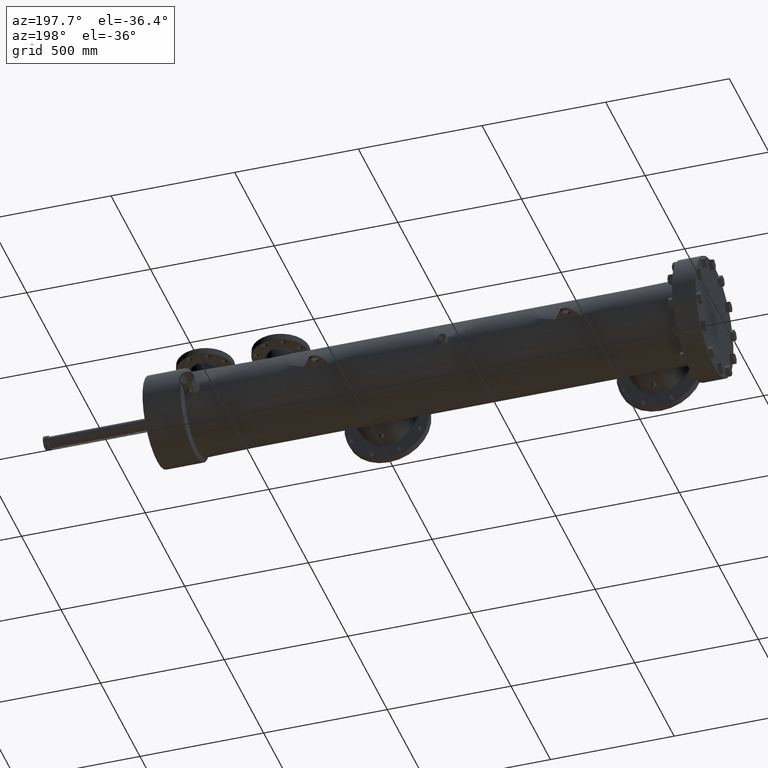
[diagram: clean part render]
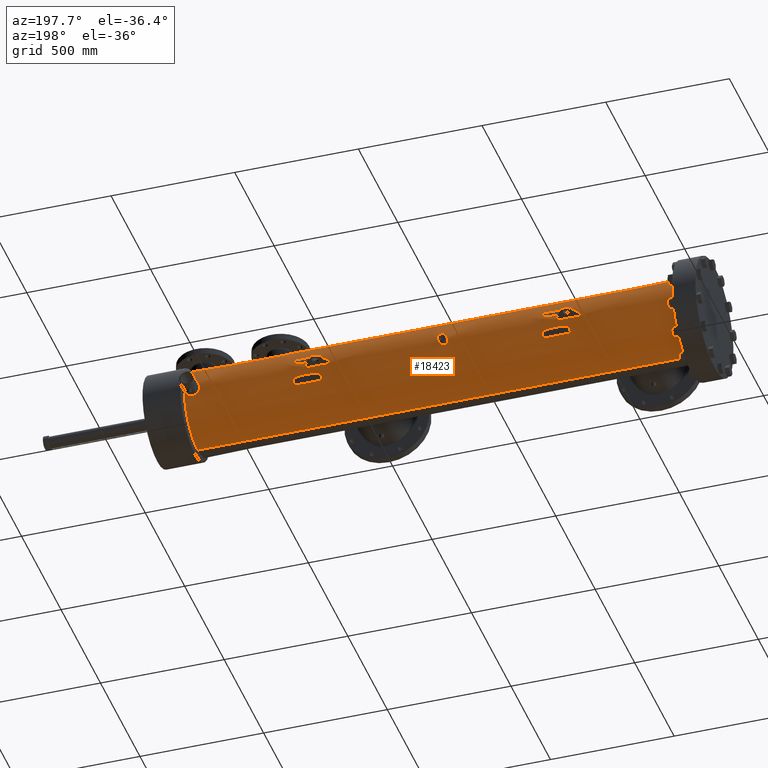
[diagram: same view with one face highlighted and labeled with its STEP entity id]
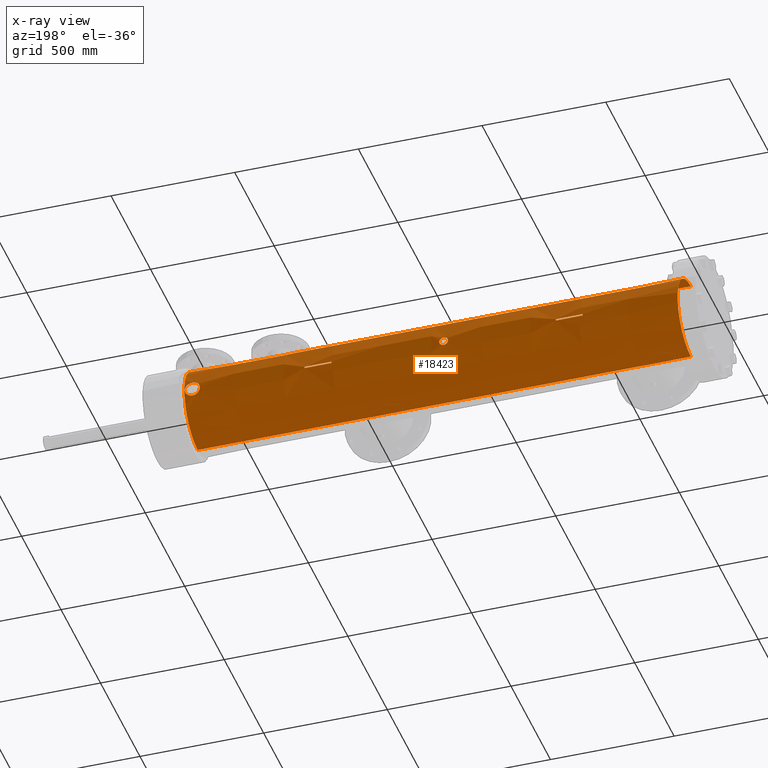
[diagram: x-ray of the same camera — body ghosted, the highlighted face saturated]
A machine part, auxiliary view. The second image highlights one B-rep face of the part: STEP entity #18423.
The next image is the same camera in x-ray: the body ghosted, the highlighted face saturated — about 0% of this face is hidden behind the body in this view.
In plain terms, the highlighted conical surface has half-angle 0.002 deg.
Its self-contained STEP definition (entity closure, byte-faithful):
#23 = CARTESIAN_POINT ( 'NONE',  ( 775.4865027959423287, 190.6797848216131968, -1.194855040561723092 ) ) ;
#70 = CARTESIAN_POINT ( 'NONE',  ( 698.3182505649875793, 184.1613553879231517, 6.624798784731736667 ) ) ;
#83 = CARTESIAN_POINT ( 'NONE',  ( 776.7462087243238784, 186.0163745150873069, 6.362209326028304801 ) ) ;
#160 = CARTESIAN_POINT ( 'NONE',  ( 773.5110123443979546, 184.9492121841751100, 6.580631059574883146 ) ) ;
#170 = CARTESIAN_POINT ( 'NONE',  ( 761.4040781029584650, 184.5591010449936960, 6.614775591442791480 ) ) ;
#183 = CARTESIAN_POINT ( 'NONE',  ( 775.2536468948613901, 190.6863949747560127, 1.158272968613077492 ) ) ;
#248 = CARTESIAN_POINT ( 'NONE',  ( 773.5928300568094755, 185.1326158357519773, 6.555572472370677417 ) ) ;
#261 = ORIENTED_EDGE ( 'NONE', *, *, #4505, .T. ) ;
#275 = CARTESIAN_POINT ( 'NONE',  ( 775.5451056026677179, 190.6794354120409594, 1.196762599343148770 ) ) ;
#277 = CARTESIAN_POINT ( 'NONE',  ( 761.3684595735534231, 184.1630862149474126, 6.626625203461078861 ) ) ;
#332 = CARTESIAN_POINT ( 'NONE',  ( 698.3182505649875793, 184.1613553879231517, -6.624798784731736667 ) ) ;
#335 = CARTESIAN_POINT ( 'NONE',  ( 776.3921775209378211, 186.2010446551427094, 6.305460125881176658 ) ) ;
#420 = EDGE_CURVE ( 'NONE', #10286, #1720, #4068, .T. ) ;
#426 = CARTESIAN_POINT ( 'NONE',  ( 774.5703172293129910, 186.1223795504193959, 6.330226305317139257 ) ) ;
#433 = VERTEX_POINT ( 'NONE', #2249 ) ;
#437 = CARTESIAN_POINT ( 'NONE',  ( 765.1691886543123928, 185.6663588703744097, 6.453779367499503650 ) ) ;
#456 = CARTESIAN_POINT ( 'NONE',  ( 755.1471378975076050, 190.7866214766707174, 0.1250000000000000000 ) ) ;
#522 = CARTESIAN_POINT ( 'NONE',  ( 762.1168656323519599, 185.8155387324757726, 6.416911299848815808 ) ) ;
#535 = CARTESIAN_POINT ( 'NONE',  ( 774.3836723163419720, 190.7855325975781966, -0.1944668874746527110 ) ) ;
#536 = B_SPLINE_CURVE_WITH_KNOTS ( 'NONE', 3,
 ( #2637, #6593, #3140, #22971, #24757, #11127, #19101, #7265, #16945, #16773, #5097, #14776, #21073, #18842, #16862, #19009, #12967, #1179, #5270, #1255, #24929, #20916, #7115, #24596, #6939, #9061, #8979, #2975, #1084, #13046, #9230, #12801, #14945, #999, #3059, #18755, #18924, #5015, #22891, #4929, #12890, #15121, #20736, #24842, #3225, #15040, #20989, #8893, #17024, #5190, #9147, #13128, #1338, #22726, #14858, #3307, #17104, #10868, #24675, #7030, #20825, #22805 ),
 .UNSPECIFIED., .F., .F.,
 ( 4, 2, 2, 2, 2, 2, 2, 2, 2, 2, 2, 2, 2, 2, 2, 2, 2, 2, 2, 2, 2, 2, 2, 2, 2, 2, 2, 2, 2, 2, 4 ),
 ( 0.07123914898288594144, 0.07723234638397472041, 0.07873064573425218871, 0.08022894508452965701, 0.08322554378509462725, 0.08921874118622474814, 0.09221533988678554117, 0.09521193858734632032, 0.09820853728790709947, 0.1012051359884678925, 0.1071983333895894785, 0.1086966327398698196, 0.1101949320901501744, 0.1131915307907079282, 0.1191847281918234358, 0.1206830275421023196, 0.1221813268923811896, 0.1251779255929389434, 0.1281745242934966833, 0.1296728236437755810, 0.1311711229940544510, 0.1371643203951577461, 0.1401609190957095186, 0.1416592184459853909, 0.1431575177962612910, 0.1491507151973643086, 0.1521473138979202444, 0.1551439125984761525, 0.1581405112990321160, 0.1611371099995880241, 0.1671303074006895151 ),
 .UNSPECIFIED. ) ;
#558 = CARTESIAN_POINT ( 'NONE',  ( 734.8676019396397123, 190.7866187048074380, 0.09165498900020865869 ) ) ;
#614 = CARTESIAN_POINT ( 'NONE',  ( 763.8541945416548060, 186.3459982223155293, 6.256305035984192742 ) ) ;
#651 = CARTESIAN_POINT ( 'NONE',  ( 734.9552548395359963, 190.7780428358747429, 0.3491082697561253001 ) ) ;
#673 = CARTESIAN_POINT ( 'NONE',  ( 773.3681257417587176, 184.1627470090584495, 6.626972954749449585 ) ) ;
#701 = CARTESIAN_POINT ( 'NONE',  ( 761.4819607616517487, 184.8750444982794647, 6.589437913850310302 ) ) ;
#781 = CARTESIAN_POINT ( 'NONE',  ( 761.6467576115259135, 185.2342333470891163, 6.539284663996751235 ) ) ;
#903 = CARTESIAN_POINT ( 'NONE',  ( 735.0345406358643459, 190.7712778956214095, 0.4596615362385269021 ) ) ;
#908 = CARTESIAN_POINT ( 'NONE',  ( 757.6849278439913178, 190.7882671655726483, -0.04167160966238111358 ) ) ;
#978 = CARTESIAN_POINT ( 'NONE',  ( 736.1849342735349637, 190.7801662663273419, 0.3092352577929780022 ) ) ;
#989 = CARTESIAN_POINT ( 'NONE',  ( 735.2098889121137972, 190.7596765996592012, -0.6036516920924152041 ) ) ;
#993 = CARTESIAN_POINT ( 'NONE',  ( 757.6859645855671488, 190.7866950424357526, -0.1250000000000000000 ) ) ;
#999 = CARTESIAN_POINT ( 'NONE',  ( 776.7517826696789598, 190.7866842311784410, -0.1568862969684876041 ) ) ;
#1013 = CARTESIAN_POINT ( 'NONE',  ( 713.4312074525861362, 190.7869851614422601, -0.04167161195405471447 ) ) ;
#1059 = CARTESIAN_POINT ( 'NONE',  ( 736.2322829383538192, 190.7848343214511999, 0.1803315086380940235 ) ) ;
#1084 = CARTESIAN_POINT ( 'NONE',  ( 776.7614426441336946, 190.7884232212573750, 0.07924565169164062006 ) ) ;
#1093 = CARTESIAN_POINT ( 'NONE',  ( 776.8291199031046972, 184.1613553879231517, -6.627073333241657593 ) ) ;
#1166 = CARTESIAN_POINT ( 'NONE',  ( 735.3343794740911790, 190.7541654349640794, -0.6613119121588948435 ) ) ;
#1171 = CARTESIAN_POINT ( 'NONE',  ( 713.4301704706816736, 190.7854126739024991, -0.1250000000000000000 ) ) ;
#1179 = CARTESIAN_POINT ( 'NONE',  ( 776.5141325872941707, 190.7482026002075486, 0.7296252591044121161 ) ) ;
#1236 = CARTESIAN_POINT ( 'NONE',  ( 735.9071763474032650, 190.7596706361762529, -0.6039378737942009412 ) ) ;
#1255 = CARTESIAN_POINT ( 'NONE',  ( 776.6031304828832162, 190.7615263668976695, 0.6000403053351327509 ) ) ;
#1313 = CARTESIAN_POINT ( 'NONE',  ( 736.2556356034612008, 190.7872536009790281, 0.02290084867295926613 ) ) ;
#1338 = CARTESIAN_POINT ( 'NONE',  ( 776.1636442249742913, 190.7068234127534652, -1.036843949795052788 ) ) ;
#1387 = B_SPLINE_CURVE_WITH_KNOTS ( 'NONE', 3,
 ( #20971, #14923, #22867, #11022, #13025, #22623, #4908, #13110, #18732, #1236, #15015, #20714, #4990, #3200, #17003, #8872, #18823, #7006, #24573, #5166, #18988, #9123, #11100, #12867, #24910, #1313, #5252, #12777, #15095, #10844, #1059, #21050, #10761, #978, #22787, #10937, #24736, #3372, #13281, #1400, #3536, #7569, #15426, #21132, #5494, #17254, #21216, #3613, #21391, #13364, #7489, #21300 ),
 .UNSPECIFIED., .F., .F.,
 ( 4, 2, 2, 2, 2, 2, 2, 2, 2, 2, 2, 2, 2, 2, 2, 2, 2, 2, 2, 2, 2, 2, 2, 2, 2, 4 ),
 ( 0.01366950837305698149, 0.01713139073549430416, 0.01886233191671296550, 0.02059327309793163030, 0.02232421427915029163, 0.02405515546036895297, 0.02751703782279765059, 0.02924797900401582273, 0.03097892018523400182, 0.03444080254767624416, 0.03617174372889533918, 0.03790268491011443419, 0.04136456727255261728, 0.04309550845377171924, 0.04482644963499080037, 0.04655739081620989539, 0.04828833199742899041, 0.05175021435986716656, 0.05348115554108626157, 0.05521209672230535659, 0.05867397908473589996, 0.06040492026594684871, 0.06213586144715779747, 0.06386680262836874622, 0.06559774380957969497, 0.06905962617200159248 ),
 .UNSPECIFIED. ) ;
#1400 = CARTESIAN_POINT ( 'NONE',  ( 736.0191809312808573, 190.7664874774443149, 0.5250719242645773832 ) ) ;
#1423 = CARTESIAN_POINT ( 'NONE',  ( 713.4301704706816736, 190.7854126739024991, 0.1250000000000000000 ) ) ;
#1435 = AXIS2_PLACEMENT_3D ( 'NONE', #21196, #5232, #5308 ) ;
#1502 = B_SPLINE_CURVE_WITH_KNOTS ( 'NONE', 3,
 ( #1423, #15197, #19260, #7433, #7682, #5786, #17778 ),
 .UNSPECIFIED., .F., .F.,
 ( 4, 3, 4 ),
 ( 0.1946596024845252126, 0.2059506957627644519, 0.3026902803308108569 ),
 .UNSPECIFIED. ) ;
#1691 = CARTESIAN_POINT ( 'NONE',  ( 765.7621597064253365, 184.1617015796352348, 6.626752710912077404 ) ) ;
#1692 = ORIENTED_EDGE ( 'NONE', *, *, #8489, .F. ) ;
#1720 = VERTEX_POINT ( 'NONE', #17904 ) ;
#1751 = CARTESIAN_POINT ( 'NONE',  ( 775.5646964343260379, 190.6794359890937471, -1.196762599360133184 ) ) ;
#1984 = CARTESIAN_POINT ( 'NONE',  ( 761.3684595735533094, 184.1634323763099133, 6.626625094963443985 ) ) ;
#2068 = VERTEX_POINT ( 'NONE', #21517 ) ;
#2140 = CARTESIAN_POINT ( 'NONE',  ( 774.6608280262184962, 186.1657645182615113, 6.316622759468828008 ) ) ;
#2161 = CARTESIAN_POINT ( 'NONE',  ( 774.9651512491732319, 190.7068437877194924, 1.036492350784190997 ) ) ;
#2163 = FACE_BOUND ( 'NONE', #13014, .T. ) ;
#2227 = CARTESIAN_POINT ( 'NONE',  ( 774.7757895597908373, 186.2142504126506140, 6.301051320549793999 ) ) ;
#2246 = CARTESIAN_POINT ( 'NONE',  ( 774.4905202969894162, 190.7672978713273153, -0.5290922695501697470 ) ) ;
#2249 = CARTESIAN_POINT ( 'NONE',  ( 713.4301704706816736, 190.7854126739024991, 0.1250000000000000000 ) ) ;
#2306 = CARTESIAN_POINT ( 'NONE',  ( 773.4027574828942306, 184.5649659930953703, 6.615434282910465313 ) ) ;
#2329 = CARTESIAN_POINT ( 'NONE',  ( 774.4290731499169169, 190.7775254939625711, -0.3856068150153947327 ) ) ;
#2410 = CARTESIAN_POINT ( 'NONE',  ( 763.2754838972477955, 186.3422916977582986, 6.257513208693231910 ) ) ;
#2423 = CARTESIAN_POINT ( 'NONE',  ( 774.9317550915203583, 190.7099971197300476, 1.016436278906667212 ) ) ;
#2498 = CARTESIAN_POINT ( 'NONE',  ( 765.0182587148718767, 185.8173200802749818, 6.417325454077118962 ) ) ;
#2536 = CARTESIAN_POINT ( 'NONE',  ( 734.8630596204850463, 190.7870939903383487, 0.04583539738119508933 ) ) ;
#2595 = CARTESIAN_POINT ( 'NONE',  ( 761.6646464086227297, 185.2656672938326210, 6.534045491424266494 ) ) ;
#2611 = CARTESIAN_POINT ( 'NONE',  ( 761.3684602281053913, 184.1617015560229049, 6.626625420478460704 ) ) ;
#2625 = CARTESIAN_POINT ( 'NONE',  ( 734.8852506742614423, 190.7847983809522248, -0.1802146389956637840 ) ) ;
#2637 = CARTESIAN_POINT ( 'NONE',  ( 775.5646964343260379, 190.6794359890937471, 1.196762599360133184 ) ) ;
#2681 = CARTESIAN_POINT ( 'NONE',  ( 762.0374728614744981, 185.7424028713757878, 6.435323501553768644 ) ) ;
#2712 = CARTESIAN_POINT ( 'NONE',  ( 735.0986402347037938, 190.7664412913404419, 0.5253359151996851439 ) ) ;
#2765 = CARTESIAN_POINT ( 'NONE',  ( 762.0635367536193598, 185.7672165320498721, 6.429172783259031299 ) ) ;
#2882 = CARTESIAN_POINT ( 'NONE',  ( 735.1903808962241555, 190.7607400463615477, 0.5919426077342954118 ) ) ;
#2919 = EDGE_CURVE ( 'NONE', #13300, #14152, #22890, .T. ) ;
#2963 = CARTESIAN_POINT ( 'NONE',  ( 735.5360309302751602, 190.7504862782888324, -0.6968503937008418969 ) ) ;
#2975 = CARTESIAN_POINT ( 'NONE',  ( 776.7536870928191775, 190.7870098064324793, 0.1570535458391881523 ) ) ;
#3059 = CARTESIAN_POINT ( 'NONE',  ( 776.7460243972457192, 190.7856515990784487, -0.1955393603727210716 ) ) ;
#3131 = CARTESIAN_POINT ( 'NONE',  ( 735.4447605217693535, 190.7514323236628115, -0.6878352513589615080 ) ) ;
#3140 = CARTESIAN_POINT ( 'NONE',  ( 775.7208384023680310, 190.6808559719979144, 1.189129646052128564 ) ) ;
#3200 = CARTESIAN_POINT ( 'NONE',  ( 736.0674339473409873, 190.7700859863634548, -0.4768536424242098004 ) ) ;
#3225 = CARTESIAN_POINT ( 'NONE',  ( 776.5147763373608996, 190.7482951047238657, -0.7287963890386929267 ) ) ;
#3257 = CARTESIAN_POINT ( 'NONE',  ( 698.3182505649875793, 184.1613553879231517, 6.624798784731736667 ) ) ;
#3263 = CARTESIAN_POINT ( 'NONE',  ( 753.4349432352114491, 190.7881440460349722, 0.04167161022399093473 ) ) ;
#3274 = DIRECTION ( 'NONE',  ( 0.0000000000000000000, 0.0000000000000000000, 1.000000000000000000 ) ) ;
#3307 = CARTESIAN_POINT ( 'NONE',  ( 775.9870085444723600, 190.6930160867550512, -1.120453340470419112 ) ) ;
#3336 = VECTOR ( 'NONE', #20854, 39.37007874015748854 ) ;
#3372 = CARTESIAN_POINT ( 'NONE',  ( 736.0827724706274466, 190.7712880921346823, 0.4599599353444879801 ) ) ;
#3406 = FACE_BOUND ( 'NONE', #3687, .T. ) ;
#3536 = CARTESIAN_POINT ( 'NONE',  ( 735.9841083529344132, 190.7641031443581596, 0.5538883677756526458 ) ) ;
#3613 = CARTESIAN_POINT ( 'NONE',  ( 735.7394596641195221, 190.7529328427155804, 0.6734058359506439606 ) ) ;
#3627 = CARTESIAN_POINT ( 'NONE',  ( 775.1788675298397493, 190.6904358190342634, -1.135560898583652945 ) ) ;
#3628 = B_SPLINE_CURVE_WITH_KNOTS ( 'NONE', 3,
 ( #17371, #13491, #9589, #1691, #15470 ),
 .UNSPECIFIED., .F., .F.,
 ( 4, 1, 4 ),
 ( 0.2217245675846880038, 0.2217506509199212994, 0.2217767342551546228 ),
 .UNSPECIFIED. ) ;
#3687 = EDGE_LOOP ( 'NONE', ( #1692, #4336, #21192, #24331 ) ) ;
#3690 = LINE ( 'NONE', #70, #6466 ) ;
#3756 = CARTESIAN_POINT ( 'NONE',  ( 698.3182505649875793, 184.1613553879231517, 0.0000000000000000000 ) ) ;
#3992 = CARTESIAN_POINT ( 'NONE',  ( 761.3684605553864913, 184.1613553879231517, 6.626625420487942897 ) ) ;
#4028 = CARTESIAN_POINT ( 'NONE',  ( 775.0120231116563900, 186.2919189232231645, 6.275235656997427469 ) ) ;
#4038 = CARTESIAN_POINT ( 'NONE',  ( 761.3719958743952247, 184.3074675391765425, 6.625405149858776710 ) ) ;
#4047 = CARTESIAN_POINT ( 'NONE',  ( 774.3834553835127963, 190.7855675368063828, 0.1961167152784564494 ) ) ;
#4068 = B_SPLINE_CURVE_WITH_KNOTS ( 'NONE', 3,
 ( #12154, #2611, #18288, #277, #6278 ),
 .UNSPECIFIED., .F., .F.,
 ( 4, 1, 4 ),
 ( 0.04592771813581388030, 0.04595410278338605409, 0.04598048743095822788 ),
 .UNSPECIFIED. ) ;
#4117 = CARTESIAN_POINT ( 'NONE',  ( 774.3870477441982985, 190.7849312461950717, -0.2139676218078621073 ) ) ;
#4186 = CARTESIAN_POINT ( 'NONE',  ( 774.1369089271436223, 185.8357612931011715, 6.412357333805340787 ) ) ;
#4210 = CARTESIAN_POINT ( 'NONE',  ( 774.7459369008112162, 190.7305767013464504, 0.8737356118992339882 ) ) ;
#4264 = ORIENTED_EDGE ( 'NONE', *, *, #2919, .F. ) ;
#4271 = CARTESIAN_POINT ( 'NONE',  ( 776.2036370242274188, 186.2660075437251521, 6.283987774062696374 ) ) ;
#4294 = CARTESIAN_POINT ( 'NONE',  ( 774.3775948699328637, 190.7866181758984681, 0.1567905957094849201 ) ) ;
#4336 = ORIENTED_EDGE ( 'NONE', *, *, #7175, .T. ) ;
#4364 = CARTESIAN_POINT ( 'NONE',  ( 764.2762340622102784, 186.2433325036435292, 6.291196223537983911 ) ) ;
#4376 = EDGE_LOOP ( 'NONE', ( #15091, #6611, #9460, #25197 ) ) ;
#4448 = CARTESIAN_POINT ( 'NONE',  ( 764.6354518998683716, 186.0823460740365078, 6.342202059861721253 ) ) ;
#4485 = CARTESIAN_POINT ( 'NONE',  ( 734.8619152073398482, 190.7872146066897301, -0.04525556805263020871 ) ) ;
#4502 = ORIENTED_EDGE ( 'NONE', *, *, #5479, .T. ) ;
#4505 = EDGE_CURVE ( 'NONE', #14356, #14826, #3628, .T. ) ;
#4547 = CARTESIAN_POINT ( 'NONE',  ( 763.4203694678308239, 186.3558000169034869, 6.252788876925863271 ) ) ;
#4612 = FACE_OUTER_BOUND ( 'NONE', #10460, .T. ) ;
#4623 = CARTESIAN_POINT ( 'NONE',  ( 765.3077774786872851, 185.5018087398399587, 6.489817345584070196 ) ) ;
#4709 = CARTESIAN_POINT ( 'NONE',  ( 763.5296197059684573, 186.3602918453274242, 6.251213700233239301 ) ) ;
#4747 = CARTESIAN_POINT ( 'NONE',  ( 715.1442500553001764, 190.7854623415639423, -0.1250000000000000000 ) ) ;
#4828 = CARTESIAN_POINT ( 'NONE',  ( 735.1337847122732683, 190.7640590329150427, 0.5541096919824886058 ) ) ;
#4908 = CARTESIAN_POINT ( 'NONE',  ( 735.8044934150063909, 190.7550405360984485, -0.6524889344441845429 ) ) ;
#4929 = CARTESIAN_POINT ( 'NONE',  ( 776.6847412579408001, 190.7749970135577371, -0.4220615501011454884 ) ) ;
#4990 = CARTESIAN_POINT ( 'NONE',  ( 736.0192430651804898, 190.7664919795389267, -0.5250133803022301038 ) ) ;
#5010 = EDGE_CURVE ( 'NONE', #7269, #24119, #12875, .T. ) ;
#5015 = CARTESIAN_POINT ( 'NONE',  ( 776.7042055076358338, 190.7783225789581536, -0.3662663660259263820 ) ) ;
#5097 = CARTESIAN_POINT ( 'NONE',  ( 776.1639620374500055, 190.7066180478657600, 1.038916566557609444 ) ) ;
#5166 = CARTESIAN_POINT ( 'NONE',  ( 736.2111820592471076, 190.7827189361211708, -0.2459576641237624928 ) ) ;
#5179 = CARTESIAN_POINT ( 'NONE',  ( 735.2710312660701675, 190.7567249352877639, -0.6350766579821287561 ) ) ;
#5190 = CARTESIAN_POINT ( 'NONE',  ( 776.3554877714284430, 190.7270256167489606, -0.9016606833083251615 ) ) ;
#5231 = CARTESIAN_POINT ( 'NONE',  ( 753.4339064347177555, 190.7865718335877432, -0.1250000000000000000 ) ) ;
#5232 = DIRECTION ( 'NONE',  ( -1.000000000000000000, -0.0000000000000000000, -0.0000000000000000000 ) ) ;
#5245 = FACE_BOUND ( 'NONE', #22685, .T. ) ;
#5252 = CARTESIAN_POINT ( 'NONE',  ( 736.2544951782601856, 190.7871333501140896, 0.04585868410738785234 ) ) ;
#5270 = CARTESIAN_POINT ( 'NONE',  ( 776.5377597698934551, 190.7516612632593933, 0.6978039396776193337 ) ) ;
#5308 = DIRECTION ( 'NONE',  ( 0.0000000000000000000, 0.0000000000000000000, 1.000000000000000000 ) ) ;
#5479 = EDGE_CURVE ( 'NONE', #1720, #14356, #23278, .T. ) ;
#5494 = CARTESIAN_POINT ( 'NONE',  ( 735.8464005305411320, 190.7567363788443799, 0.6351309002565413975 ) ) ;
#5684 = CARTESIAN_POINT ( 'NONE',  ( 774.7744704836684377, 190.7269081937898250, -0.9022007367105382425 ) ) ;
#5725 = CARTESIAN_POINT ( 'NONE',  ( 753.4339064347177555, 190.7865718335877432, 0.1250000000000000000 ) ) ;
#5754 = CARTESIAN_POINT ( 'NONE',  ( 773.3681257417588313, 184.2134987189071467, 6.626956968290791394 ) ) ;
#5776 = B_SPLINE_CURVE_WITH_KNOTS ( 'NONE', 3,
 ( #1171, #18921, #7107, #18746, #4747, #6931, #14602 ),
 .UNSPECIFIED., .F., .F.,
 ( 4, 3, 4 ),
 ( 0.1946596024845252126, 0.2059506957627644519, 0.3026902803308108569 ),
 .UNSPECIFIED. ) ;
#5786 = CARTESIAN_POINT ( 'NONE',  ( 716.4137984086785309, 190.7854991283608399, 0.1250000000000000000 ) ) ;
#5918 = CARTESIAN_POINT ( 'NONE',  ( 775.3590389506288147, 186.3507659766667359, 6.254920119902643627 ) ) ;
#6005 = CARTESIAN_POINT ( 'NONE',  ( 773.6390119726884222, 185.2214213346645408, 6.541800609894317553 ) ) ;
#6015 = CARTESIAN_POINT ( 'NONE',  ( 761.3870944634064699, 184.4512648559123420, 6.620378937112140427 ) ) ;
#6028 = CARTESIAN_POINT ( 'NONE',  ( 774.4909823467646675, 190.7672224897161470, 0.5300398058786127686 ) ) ;
#6091 = CARTESIAN_POINT ( 'NONE',  ( 773.9930359200368457, 185.6982973430019399, 6.446328509330899514 ) ) ;
#6175 = CARTESIAN_POINT ( 'NONE',  ( 776.1070383595226758, 186.2929579513583462, 6.274894139383423664 ) ) ;
#6198 = CARTESIAN_POINT ( 'NONE',  ( 774.6649231202535475, 190.7412068827817393, -0.7893284998380702966 ) ) ;
#6253 = CARTESIAN_POINT ( 'NONE',  ( 773.9245893963961862, 185.6255550517550148, 6.463320181663146258 ) ) ;
#6269 = CARTESIAN_POINT ( 'NONE',  ( 775.1789257743785129, 190.6904269219685943, 1.135618548944876238 ) ) ;
#6278 = CARTESIAN_POINT ( 'NONE',  ( 761.3684595735533094, 184.1634323763099133, 6.626625094963443985 ) ) ;
#6361 = CARTESIAN_POINT ( 'NONE',  ( 762.6550575677031247, 186.1631544383559174, 6.317097536399525204 ) ) ;
#6447 = CARTESIAN_POINT ( 'NONE',  ( 764.9083522680484748, 185.9079008097315864, 6.392970873712861213 ) ) ;
#6465 = B_SPLINE_CURVE_WITH_KNOTS ( 'NONE', 3,
 ( #24236, #22463, #12446, #16593, #6583, #10603, #22548, #10686, #24495, #12360, #2882, #4828, #2712, #12706, #903, #14681, #18652, #24144, #651, #6843, #22206, #14420, #10335, #14329, #558, #2536, #16330, #4485, #20305, #8465, #2625, #22373, #8805, #12956, #10772, #22796, #12789, #10858, #16764, #20813, #20726, #17095, #8883, #20901, #989, #8968, #5179, #1166, #18916, #3131, #9055, #14764, #2963, #11113 ),
 .UNSPECIFIED., .F., .F.,
 ( 4, 2, 2, 2, 2, 2, 2, 2, 2, 2, 2, 2, 2, 2, 2, 2, 2, 2, 2, 2, 2, 2, 2, 2, 2, 2, 4 ),
 ( 0.06905962617200159248, 0.07078938826559476316, 0.07251915035918793384, 0.07597867454637427520, 0.07770843663996260253, 0.07943819873355092986, 0.08289772292073629978, 0.08462748501432533488, 0.08635724710791436998, 0.08808700920150340508, 0.08981677129509244017, 0.09327629548226656908, 0.09500605757585360578, 0.09673581966944064248, 0.1001953438566147020, 0.1019251059502027656, 0.1036548680437908154, 0.1053846301373788652, 0.1071143922309669427, 0.1105739164181431811, 0.1123036785117276642, 0.1140334406053121474, 0.1157632026988966167, 0.1174929647924811138, 0.1209524889796598224, 0.1226822510732491767, 0.1244120131668385032 ),
 .UNSPECIFIED. ) ;
#6466 = VECTOR ( 'NONE', #21812, 39.37007874015748854 ) ;
#6499 = AXIS2_PLACEMENT_3D ( 'NONE', #3756, #15753, #15571 ) ;
#6548 = CARTESIAN_POINT ( 'NONE',  ( 763.4932726704512334, 186.3594046547698611, 6.251524884527938752 ) ) ;
#6558 = CARTESIAN_POINT ( 'NONE',  ( 765.7621593791217265, 184.1613553879231517, 6.626752710902593435 ) ) ;
#6583 = CARTESIAN_POINT ( 'NONE',  ( 735.4448366110901816, 190.7514308549507120, 0.6878493969630192773 ) ) ;
#6593 = CARTESIAN_POINT ( 'NONE',  ( 775.6431115602836144, 190.6794382988310019, 1.196762599428119023 ) ) ;
#6611 = ORIENTED_EDGE ( 'NONE', *, *, #19935, .T. ) ;
#6632 = CARTESIAN_POINT ( 'NONE',  ( 765.3712932566705831, 185.4147737189385623, 6.507192843794885384 ) ) ;
#6724 = CARTESIAN_POINT ( 'NONE',  ( 764.1723280813356496, 186.2750649557428915, 6.280573009915768168 ) ) ;
#6776 = CARTESIAN_POINT ( 'NONE',  ( 757.6859645855671488, 190.7866950424357526, -0.1250000000000000000 ) ) ;
#6843 = CARTESIAN_POINT ( 'NONE',  ( 734.9337004193263283, 190.7800430567193075, 0.3088602203324364304 ) ) ;
#6931 = CARTESIAN_POINT ( 'NONE',  ( 716.4137984086785309, 190.7854991283608399, -0.1250000000000000000 ) ) ;
#6939 = CARTESIAN_POINT ( 'NONE',  ( 776.7040192799196348, 190.7782904651041349, 0.3668528608196602869 ) ) ;
#7006 = CARTESIAN_POINT ( 'NONE',  ( 736.1635456473684371, 190.7781514310908335, -0.3491969531915739000 ) ) ;
#7030 = CARTESIAN_POINT ( 'NONE',  ( 775.7207580599731500, 190.6808474595585494, -1.189178213433209619 ) ) ;
#7107 = CARTESIAN_POINT ( 'NONE',  ( 713.7265246248417725, 190.7854212611454727, -0.1250000000000000000 ) ) ;
#7115 = CARTESIAN_POINT ( 'NONE',  ( 776.6845035326897460, 190.7749567555308374, 0.4226897418841551457 ) ) ;
#7175 = EDGE_CURVE ( 'NONE', #433, #14502, #23722, .T. ) ;
#7224 = EDGE_CURVE ( 'NONE', #2068, #9756, #8724, .T. ) ;
#7265 = CARTESIAN_POINT ( 'NONE',  ( 775.9502256484896634, 190.6907307003876042, 1.133647347678961914 ) ) ;
#7269 = VERTEX_POINT ( 'NONE', #18596 ) ;
#7291 =( BOUNDED_CURVE ( )  B_SPLINE_CURVE ( 3, ( #9408, #11475, #17203, #15210 ),
 .UNSPECIFIED., .F., .F. ) 
 B_SPLINE_CURVE_WITH_KNOTS ( ( 4, 4 ),
 ( 3.122724994711672863, 3.160460312467913369 ),
 .UNSPECIFIED. ) 
 CURVE ( )  GEOMETRIC_REPRESENTATION_ITEM ( )  RATIONAL_B_SPLINE_CURVE ( ( 1.000000000000000000, 0.9998813406696624995, 0.9998813406696624995, 1.000000000000000000 ) ) 
 REPRESENTATION_ITEM ( '' )  );
#7351 = CARTESIAN_POINT ( 'NONE',  ( 756.4165512415373769, 190.7866582595532918, -0.1250000000000000000 ) ) ;
#7405 = FACE_BOUND ( 'NONE', #4376, .T. ) ;
#7433 = CARTESIAN_POINT ( 'NONE',  ( 713.8747017019217083, 190.7854255547669027, 0.1250000000000000000 ) ) ;
#7489 = CARTESIAN_POINT ( 'NONE',  ( 735.6042548235276399, 190.7504882658346617, 0.6968503937008417859 ) ) ;
#7503 = EDGE_CURVE ( 'NONE', #9918, #21545, #7291, .T. ) ;
#7569 = CARTESIAN_POINT ( 'NONE',  ( 735.9270395042283326, 190.7607530106512570, 0.5920392404396237485 ) ) ;
#7586 = CARTESIAN_POINT ( 'NONE',  ( 774.9318232536536470, 190.7099904143298090, -1.016479803888224120 ) ) ;
#7605 = DIRECTION ( 'NONE',  ( 0.9999999995803368069, 3.547940017089211670E-21, 2.897112881493199885E-05 ) ) ;
#7677 = CARTESIAN_POINT ( 'NONE',  ( 753.4339064347177555, 190.7865718335877432, -0.1250000000000000000 ) ) ;
#7682 = CARTESIAN_POINT ( 'NONE',  ( 715.1442500553001764, 190.7854623415639423, 0.1250000000000000000 ) ) ;
#7906 = CARTESIAN_POINT ( 'NONE',  ( 775.8097393499296004, 186.3489074591184078, 6.255587456092487564 ) ) ;
#7988 = CARTESIAN_POINT ( 'NONE',  ( 774.4592736481580459, 186.0643944836164110, 6.348069690573352020 ) ) ;
#7995 = CARTESIAN_POINT ( 'NONE',  ( 761.3977974698553908, 184.5230987371708693, 6.616842950335700024 ) ) ;
#8006 = CARTESIAN_POINT ( 'NONE',  ( 774.3679448382907822, 190.7883548519457690, 0.03947533624563367288 ) ) ;
#8089 = CARTESIAN_POINT ( 'NONE',  ( 774.5588003360255698, 190.7565577345837653, -0.6486938124324719279 ) ) ;
#8152 = CARTESIAN_POINT ( 'NONE',  ( 774.9162721588667182, 186.2646893233012122, 6.284473379959199413 ) ) ;
#8177 = CARTESIAN_POINT ( 'NONE',  ( 774.4065681780833756, 190.7814727521912914, 0.3117094847374601851 ) ) ;
#8231 = VERTEX_POINT ( 'NONE', #5725 ) ;
#8247 = CARTESIAN_POINT ( 'NONE',  ( 775.2834648879496626, 186.3423283128892649, 6.257865330601720011 ) ) ;
#8275 = CARTESIAN_POINT ( 'NONE',  ( 774.4063112953297150, 190.7815176836236901, -0.3108675191109645519 ) ) ;
#8282 = CARTESIAN_POINT ( 'NONE',  ( 753.8777245534778331, 190.7865846937880860, 0.1250000000000000000 ) ) ;
#8347 = CARTESIAN_POINT ( 'NONE',  ( 764.5408032381538987, 186.1331257693444741, 6.326670320373213308 ) ) ;
#8361 = CARTESIAN_POINT ( 'NONE',  ( 774.3755294516706726, 190.7869893285892431, -0.1360640587974920046 ) ) ;
#8430 = CARTESIAN_POINT ( 'NONE',  ( 765.7477973174179624, 184.4525881413349566, 6.621860052958619569 ) ) ;
#8465 = CARTESIAN_POINT ( 'NONE',  ( 734.8796469619620666, 190.7853721999589141, -0.1577963211378453912 ) ) ;
#8489 = EDGE_CURVE ( 'NONE', #433, #21545, #1502, .T. ) ;
#8523 = CARTESIAN_POINT ( 'NONE',  ( 764.7282039493660477, 186.0275997795014291, 6.358534371085423409 ) ) ;
#8580 = CARTESIAN_POINT ( 'NONE',  ( 713.4301704706816736, 190.7854126739024991, 0.1250000000000000000 ) ) ;
#8608 = CARTESIAN_POINT ( 'NONE',  ( 765.6202357605798170, 184.9410834439263169, 6.580805082840575082 ) ) ;
#8645 = CONICAL_SURFACE ( 'NONE', #6499, 6.624798784731736667, 2.897112881898470592E-05 ) ;
#8650 = EDGE_CURVE ( 'NONE', #8231, #19377, #22461, .T. ) ;
#8697 = CARTESIAN_POINT ( 'NONE',  ( 765.6879420266252509, 184.7342646626330236, 6.602307263773781187 ) ) ;
#8724 = B_SPLINE_CURVE_WITH_KNOTS ( 'NONE', 3,
 ( #14624, #16617, #673, #24347 ),
 .UNSPECIFIED., .F., .F.,
 ( 4, 4 ),
 ( 0.1221305037473495864, 0.1221835316852434017 ),
 .UNSPECIFIED. ) ;
#8732 = CARTESIAN_POINT ( 'NONE',  ( 757.6859645855671488, 190.7866950424357526, 0.1250000000000000000 ) ) ;
#8801 = ORIENTED_EDGE ( 'NONE', *, *, #12391, .F. ) ;
#8805 = CARTESIAN_POINT ( 'NONE',  ( 734.9061461425530979, 190.7827044307988729, -0.2453196031031753266 ) ) ;
#8872 = CARTESIAN_POINT ( 'NONE',  ( 736.1118504949813541, 190.7736576684569627, -0.4245482943002883425 ) ) ;
#8883 = CARTESIAN_POINT ( 'NONE',  ( 735.1526967741378940, 190.7629498686163458, -0.5667534925842901972 ) ) ;
#8893 = CARTESIAN_POINT ( 'NONE',  ( 776.4380316173954952, 190.7376955267600067, -0.8184837922232186536 ) ) ;
#8968 = CARTESIAN_POINT ( 'NONE',  ( 735.2501502976482470, 190.7576714364968780, -0.6251945481234744140 ) ) ;
#8979 = CARTESIAN_POINT ( 'NONE',  ( 776.7307737804113685, 190.7829484787786214, 0.2721042306407323030 ) ) ;
#9025 = CARTESIAN_POINT ( 'NONE',  ( 753.4349432352114491, 190.7881440460349722, -0.04167161022398931103 ) ) ;
#9055 = CARTESIAN_POINT ( 'NONE',  ( 735.4673954347347262, 190.7510781803006807, -0.6912153811416553717 ) ) ;
#9061 = CARTESIAN_POINT ( 'NONE',  ( 776.7212423672589239, 190.7812709652103820, 0.3101756441853781299 ) ) ;
#9123 = CARTESIAN_POINT ( 'NONE',  ( 736.2322793729847490, 190.7848339382385063, -0.1803527332966417818 ) ) ;
#9147 = CARTESIAN_POINT ( 'NONE',  ( 776.2953431971918690, 190.7199603218749075, -0.9510732228713189018 ) ) ;
#9230 = CARTESIAN_POINT ( 'NONE',  ( 776.7609798198246835, 190.7883395759105269, -0.03929335060137816027 ) ) ;
#9318 = CARTESIAN_POINT ( 'NONE',  ( 753.7297851805578830, 190.7865804070546574, -0.1250000000000000000 ) ) ;
#9408 = CARTESIAN_POINT ( 'NONE',  ( 717.6833467620569991, 190.7855359151576238, -0.1250000000000000000 ) ) ;
#9460 = ORIENTED_EDGE ( 'NONE', *, *, #12426, .T. ) ;
#9589 = CARTESIAN_POINT ( 'NONE',  ( 765.7621601973415864, 184.1623939360740394, 6.626752656669538943 ) ) ;
#9626 = CARTESIAN_POINT ( 'NONE',  ( 773.3681257417587176, 184.1634428412521913, 6.626972735566833528 ) ) ;
#9645 = CARTESIAN_POINT ( 'NONE',  ( 775.0173705699515949, 190.7023361967714266, -1.064454663388282540 ) ) ;
#9650 = ORIENTED_EDGE ( 'NONE', *, *, #18743, .T. ) ;
#9756 = VERTEX_POINT ( 'NONE', #15948 ) ;
#9876 = CARTESIAN_POINT ( 'NONE',  ( 773.4775033901502184, 184.8552299943621051, 6.591255993485741094 ) ) ;
#9896 = CARTESIAN_POINT ( 'NONE',  ( 775.0350418176299172, 190.7008805819053521, -1.073356880688408399 ) ) ;
#9918 = VERTEX_POINT ( 'NONE', #10559 ) ;
#9963 = CARTESIAN_POINT ( 'NONE',  ( 776.6604322520885262, 186.0683423434404915, 6.346823716218252365 ) ) ;
#9979 = CARTESIAN_POINT ( 'NONE',  ( 774.3779178871709519, 190.7865608017632155, -0.1555380662584268658 ) ) ;
#10033 = CARTESIAN_POINT ( 'NONE',  ( 773.7981348221383087, 185.4727360515105374, 6.496414594662812902 ) ) ;
#10057 = CARTESIAN_POINT ( 'NONE',  ( 774.5484125254675973, 190.7581237200726321, 0.6331929939668556884 ) ) ;
#10143 = CARTESIAN_POINT ( 'NONE',  ( 774.4741847232040755, 190.7699821580616799, 0.4945268790233928735 ) ) ;
#10206 = CARTESIAN_POINT ( 'NONE',  ( 773.5710858836956731, 185.0870583359071588, 6.562169849495199436 ) ) ;
#10216 = CARTESIAN_POINT ( 'NONE',  ( 762.5580115551457538, 186.1160667115852334, 6.331827353629672750 ) ) ;
#10228 = CARTESIAN_POINT ( 'NONE',  ( 774.6628001750199246, 190.7412809167117871, 0.7905537902115963300 ) ) ;
#10286 = VERTEX_POINT ( 'NONE', #3992 ) ;
#10301 = CARTESIAN_POINT ( 'NONE',  ( 762.8554018655112259, 186.2474622533040929, 6.290016809849795720 ) ) ;
#10315 = CARTESIAN_POINT ( 'NONE',  ( 774.5282315752336899, 190.7612714746113625, 0.5996201415377223620 ) ) ;
#10335 = CARTESIAN_POINT ( 'NONE',  ( 734.8843662699928245, 190.7848856825315238, 0.1812026646469264979 ) ) ;
#10391 = CARTESIAN_POINT ( 'NONE',  ( 761.7209527722720850, 185.3574906485414147, 6.517857943813011090 ) ) ;
#10460 = EDGE_LOOP ( 'NONE', ( #4264, #25100, #22927, #4502, #261, #9650, #13417, #25221, #12108, #14432 ) ) ;
#10479 = CARTESIAN_POINT ( 'NONE',  ( 761.5646474185429042, 185.0737328962297852, 6.563860609804177848 ) ) ;
#10559 = CARTESIAN_POINT ( 'NONE',  ( 717.6833467620569991, 190.7855359151576238, -0.1250000000000000000 ) ) ;
#10567 = CARTESIAN_POINT ( 'NONE',  ( 761.7017250284030752, 185.3272600921701496, 6.523337775014954154 ) ) ;
#10603 = CARTESIAN_POINT ( 'NONE',  ( 735.3777559850771013, 190.7528162635308888, 0.6744698189758669971 ) ) ;
#10686 = CARTESIAN_POINT ( 'NONE',  ( 735.2711247601642981, 190.7567210131236379, 0.6351171165695101983 ) ) ;
#10761 = CARTESIAN_POINT ( 'NONE',  ( 736.2112236667639991, 190.7827230106522620, 0.2458525690350727433 ) ) ;
#10772 = CARTESIAN_POINT ( 'NONE',  ( 734.9331713867038616, 190.7800931317720199, -0.3077825613467637944 ) ) ;
#10844 = CARTESIAN_POINT ( 'NONE',  ( 736.2378051389001712, 190.7854000983773801, 0.1582529345619638761 ) ) ;
#10858 = CARTESIAN_POINT ( 'NONE',  ( 735.0046051222731194, 190.7736854836311409, -0.4249670988400936489 ) ) ;
#10868 = CARTESIAN_POINT ( 'NONE',  ( 775.8753873511440133, 190.6867384660058917, -1.156392678943103380 ) ) ;
#10937 = CARTESIAN_POINT ( 'NONE',  ( 736.1255830885856994, 190.7748247640713259, 0.4060230329705238894 ) ) ;
#11022 = CARTESIAN_POINT ( 'NONE',  ( 735.7169403468958535, 190.7523511393648050, -0.6790514883099110222 ) ) ;
#11100 = CARTESIAN_POINT ( 'NONE',  ( 736.2378087896943271, 190.7854004718357714, -0.1582388573634136986 ) ) ;
#11113 = CARTESIAN_POINT ( 'NONE',  ( 735.5587819821047333, 190.7504869410882691, -0.6968503937008417859 ) ) ;
#11127 = CARTESIAN_POINT ( 'NONE',  ( 775.8746922102654935, 190.6867844017140783, 1.156085835917801896 ) ) ;
#11475 = CARTESIAN_POINT ( 'NONE',  ( 717.6823098390890436, 190.7871083133586581, -0.04167161139216964127 ) ) ;
#11642 = CARTESIAN_POINT ( 'NONE',  ( 775.3689646450933424, 190.6823391582878457, -1.180813142110813230 ) ) ;
#11647 = VERTEX_POINT ( 'NONE', #21926 ) ;
#11667 = ORIENTED_EDGE ( 'NONE', *, *, #19670, .T. ) ;
#11731 = CARTESIAN_POINT ( 'NONE',  ( 753.5818458076377055, 190.7865761203212571, 0.1250000000000000000 ) ) ;
#11788 = CARTESIAN_POINT ( 'NONE',  ( 773.3853993740447095, 184.4395550676591427, 6.621179200303709322 ) ) ;
#11868 = CARTESIAN_POINT ( 'NONE',  ( 775.9092471463967513, 186.3355108013784331, 6.260292561723999505 ) ) ;
#11944 = EDGE_CURVE ( 'NONE', #13300, #10286, #3690, .T. ) ;
#11979 = CARTESIAN_POINT ( 'NONE',  ( 775.5254714347511253, 190.6795231561075639, 1.196281864072394452 ) ) ;
#12037 = CARTESIAN_POINT ( 'NONE',  ( 773.6634942917137323, 185.2647976816857920, 6.534611848625055508 ) ) ;
#12060 = B_SPLINE_CURVE_WITH_KNOTS ( 'NONE', 3,
 ( #9626, #5754, #13697, #15675, #17657, #21649, #11788, #2306, #23766, #9876, #160, #10206, #248, #6005, #12037, #19812, #10033, #14203, #6253, #12212, #6091, #13948, #24015, #4186, #15944, #14027, #7988, #426, #14119, #21735, #2140, #15769, #2227, #8152, #4028, #17747, #23684, #8247, #16021, #5918, #16108, #19724, #17833, #7906, #11868, #18004, #6175, #4271, #19891, #335, #21991, #21820, #9963, #83, #13865, #15858 ),
 .UNSPECIFIED., .F., .F.,
 ( 4, 2, 2, 2, 2, 2, 2, 2, 2, 2, 2, 2, 2, 2, 2, 2, 2, 2, 2, 2, 2, 2, 2, 2, 2, 2, 2, 4 ),
 ( 0.1221835316852434017, 0.1259981869935121457, 0.1279055146476464899, 0.1298128423017808619, 0.1374421529183154633, 0.1450714635348500647, 0.1488861188431152560, 0.1527007741513804751, 0.1603300847679186014, 0.1641447400761833486, 0.1660520677303192749, 0.1679593953844552012, 0.1755887060009800604, 0.1832180166175049474, 0.1851253442716361830, 0.1870326719257674186, 0.1908473272340309446, 0.1984766378505479767, 0.2022912931588013441, 0.2041986208129332181, 0.2061059484670650921, 0.2137352590835928101, 0.2213645697001205559, 0.2251792250083843872, 0.2289938803166482462, 0.2366231909331659999, 0.2404378462414202278, 0.2442525015496744278 ),
 .UNSPECIFIED. ) ;
#12108 = ORIENTED_EDGE ( 'NONE', *, *, #15760, .T. ) ;
#12154 = CARTESIAN_POINT ( 'NONE',  ( 761.3684605553864913, 184.1613553879231517, 6.626625420487942897 ) ) ;
#12212 = CARTESIAN_POINT ( 'NONE',  ( 773.9756395616009286, 185.6802761170846452, 6.450599644850915304 ) ) ;
#12226 = CARTESIAN_POINT ( 'NONE',  ( 762.4024089741823218, 186.0286069798697213, 6.358272459939069421 ) ) ;
#12324 = CARTESIAN_POINT ( 'NONE',  ( 761.4398182194588571, 184.7375751385968954, 6.603077779276399717 ) ) ;
#12336 = CARTESIAN_POINT ( 'NONE',  ( 774.3679165746585795, 190.7883599552096427, -0.03860897096185322841 ) ) ;
#12360 = CARTESIAN_POINT ( 'NONE',  ( 735.2098976197838738, 190.7596759704729266, 0.6036590581756153817 ) ) ;
#12391 = EDGE_CURVE ( 'NONE', #24119, #7269, #536, .T. ) ;
#12410 = CARTESIAN_POINT ( 'NONE',  ( 762.4634646247968703, 186.0653276514825620, 6.347340047400967578 ) ) ;
#12426 = EDGE_CURVE ( 'NONE', #13020, #19183, #21843, .T. ) ;
#12446 = CARTESIAN_POINT ( 'NONE',  ( 735.5132903263189519, 190.7506031345779718, 0.6957419592600188052 ) ) ;
#12497 = CIRCLE ( 'NONE', #14239, 6.627073333241656705 ) ;
#12500 = CARTESIAN_POINT ( 'NONE',  ( 764.4761923859998660, 186.1638270304482603, 6.316985260397522062 ) ) ;
#12585 = CARTESIAN_POINT ( 'NONE',  ( 765.6562228990615040, 184.8383775151712882, 6.592167144904873766 ) ) ;
#12706 = CARTESIAN_POINT ( 'NONE',  ( 735.0499315407846552, 190.7700712910813365, 0.4766535897736153826 ) ) ;
#12777 = CARTESIAN_POINT ( 'NONE',  ( 736.2500121067340615, 190.7866639933397437, 0.09121833706856144475 ) ) ;
#12789 = CARTESIAN_POINT ( 'NONE',  ( 734.9663757457857400, 190.7770345818884437, -0.3676716760075260937 ) ) ;
#12801 = CARTESIAN_POINT ( 'NONE',  ( 776.7590336738768428, 190.7879884854047816, -0.07871746503387616611 ) ) ;
#12867 = CARTESIAN_POINT ( 'NONE',  ( 736.2511097234674935, 190.7867731357096091, -0.09137095028924362150 ) ) ;
#12875 = B_SPLINE_CURVE_WITH_KNOTS ( 'NONE', 3,
 ( #1751, #15608, #23, #23531, #21757, #11642, #15522, #15700, #3627, #19657, #21491, #9896, #9645, #17426, #7586, #17510, #5684, #25416, #20092, #6198, #24040, #16039, #14142, #8089, #24124, #14224, #21842, #2246, #14310, #2329, #8275, #4117, #535, #9979, #8361, #16132, #12336, #8006, #22016, #4294, #4047, #8177, #23787, #10143, #6028, #10315, #10057, #21932, #10228, #4210, #18026, #22181, #18113, #2423, #2161, #17856, #14053, #19996, #17940, #6269, #183, #22094, #23949, #16217, #23866, #11979, #275, #19833 ),
 .UNSPECIFIED., .F., .F.,
 ( 4, 2, 2, 2, 2, 2, 2, 2, 2, 2, 2, 2, 2, 2, 2, 2, 2, 2, 2, 2, 2, 2, 2, 2, 2, 2, 2, 2, 2, 2, 2, 2, 2, 4 ),
 ( 0.1671303074006895151, 0.1701249266135000382, 0.1716222362199052720, 0.1731195458263105058, 0.1791087842519209772, 0.1806060938583235465, 0.1821034034647261157, 0.1850980226775314763, 0.1910872611031513291, 0.1925845707095542869, 0.1940818803159572448, 0.1970764995287564436, 0.1985738091351560430, 0.2000711187415556425, 0.2030657379543546470, 0.2090549763799569027, 0.2105522859863563911, 0.2120495955927558795, 0.2150442148055558278, 0.2180388340183558038, 0.2210334532311557798, 0.2270226916567577857, 0.2300173108695607593, 0.2330119300823637329, 0.2390011685079637127, 0.2419957877207675745, 0.2449904069335714640, 0.2479850261463753258, 0.2494823357527773400, 0.2509796453591793819, 0.2569688837847878826, 0.2599635029975920220, 0.2614608126039993929, 0.2629581222104067084 ),
 .UNSPECIFIED. ) ;
#12890 = CARTESIAN_POINT ( 'NONE',  ( 776.6776010631334657, 190.7737904026138835, -0.4405427417290255221 ) ) ;
#12956 = CARTESIAN_POINT ( 'NONE',  ( 734.9234861145843070, 190.7810183026739423, -0.2872532113755741912 ) ) ;
#12967 = CARTESIAN_POINT ( 'NONE',  ( 776.4643538345604838, 190.7412104019460344, 0.7901886463013417794 ) ) ;
#13014 = EDGE_LOOP ( 'NONE', ( #8801, #13296 ) ) ;
#13020 = VERTEX_POINT ( 'NONE', #16027 ) ;
#13025 = CARTESIAN_POINT ( 'NONE',  ( 735.7393673791198125, 190.7529301435903619, -0.6734323673333876270 ) ) ;
#13046 = CARTESIAN_POINT ( 'NONE',  ( 776.7614670963172330, 190.7884276376992716, -0.01944075167309471455 ) ) ;
#13110 = CARTESIAN_POINT ( 'NONE',  ( 735.8464435582664009, 190.7567382435922809, -0.6351115928960644474 ) ) ;
#13128 = CARTESIAN_POINT ( 'NONE',  ( 776.1976445730698515, 190.7100338307174638, -1.016442264580559529 ) ) ;
#13281 = CARTESIAN_POINT ( 'NONE',  ( 736.0674241997107856, 190.7700851936014885, 0.4768651563942153948 ) ) ;
#13296 = ORIENTED_EDGE ( 'NONE', *, *, #5010, .F. ) ;
#13300 = VERTEX_POINT ( 'NONE', #3257 ) ;
#13364 = CARTESIAN_POINT ( 'NONE',  ( 735.6495296602105327, 190.7509603919091887, 0.6924427090300265819 ) ) ;
#13417 = ORIENTED_EDGE ( 'NONE', *, *, #7224, .T. ) ;
#13432 = EDGE_CURVE ( 'NONE', #9756, #14751, #12060, .T. ) ;
#13491 = CARTESIAN_POINT ( 'NONE',  ( 765.7621603609547947, 184.1630862385553939, 6.626752493929384258 ) ) ;
#13548 = CARTESIAN_POINT ( 'NONE',  ( 755.1471378975076050, 190.7866214766707174, -0.1250000000000000000 ) ) ;
#13643 = EDGE_CURVE ( 'NONE', #14152, #19282, #14441, .T. ) ;
#13697 = CARTESIAN_POINT ( 'NONE',  ( 773.3698344813850554, 184.2636291254956973, 6.626374176052999942 ) ) ;
#13865 = CARTESIAN_POINT ( 'NONE',  ( 776.7881386810486219, 185.9889663039730863, 6.370150792970441955 ) ) ;
#13948 = CARTESIAN_POINT ( 'NONE',  ( 774.0283066065902631, 185.7336088010948458, 6.437808211775430500 ) ) ;
#14027 = CARTESIAN_POINT ( 'NONE',  ( 774.3746782878772592, 186.0125249705641863, 6.363478215218174583 ) ) ;
#14053 = CARTESIAN_POINT ( 'NONE',  ( 775.0343368232786361, 190.7009377234602709, 1.073008636384056524 ) ) ;
#14119 = CARTESIAN_POINT ( 'NONE',  ( 774.5928317706632242, 186.1336500005095331, 6.326723112024418505 ) ) ;
#14142 = CARTESIAN_POINT ( 'NONE',  ( 774.5914864730067393, 190.7516262123199056, -0.6976002099684559532 ) ) ;
#14152 = VERTEX_POINT ( 'NONE', #332 ) ;
#14203 = CARTESIAN_POINT ( 'NONE',  ( 773.8919529149414984, 185.5880835949364780, 6.471705025639082010 ) ) ;
#14224 = CARTESIAN_POINT ( 'NONE',  ( 774.5280472794582920, 190.7613184487879039, -0.5983248798299365401 ) ) ;
#14239 = AXIS2_PLACEMENT_3D ( 'NONE', #14731, #16560, #3274 ) ;
#14300 = CARTESIAN_POINT ( 'NONE',  ( 762.5900220375825711, 186.1322546665533366, 6.326804231593374794 ) ) ;
#14310 = CARTESIAN_POINT ( 'NONE',  ( 774.4738227368209209, 190.7700419899070425, -0.4937235941762627700 ) ) ;
#14329 = CARTESIAN_POINT ( 'NONE',  ( 734.8709885081758557, 190.7862652558464447, 0.1142726136307753021 ) ) ;
#14356 = VERTEX_POINT ( 'NONE', #24753 ) ;
#14381 = CARTESIAN_POINT ( 'NONE',  ( 761.5954803938914210, 185.1387005126533438, 6.554479917590861682 ) ) ;
#14394 = EDGE_CURVE ( 'NONE', #14502, #9918, #5776, .T. ) ;
#14420 = CARTESIAN_POINT ( 'NONE',  ( 734.8975489031315647, 190.7835397948905154, 0.2246359969936959911 ) ) ;
#14429 = EDGE_CURVE ( 'NONE', #19183, #19377, #17264, .T. ) ;
#14432 = ORIENTED_EDGE ( 'NONE', *, *, #13643, .F. ) ;
#14441 = LINE ( 'NONE', #18612, #3336 ) ;
#14479 = CARTESIAN_POINT ( 'NONE',  ( 764.6666228271997170, 186.0646300265485991, 6.347546729422687939 ) ) ;
#14502 = VERTEX_POINT ( 'NONE', #17098 ) ;
#14564 = CARTESIAN_POINT ( 'NONE',  ( 763.2041352182350238, 186.3315808557497633, 6.261246969683624819 ) ) ;
#14577 =( BOUNDED_CURVE ( )  B_SPLINE_CURVE ( 3, ( #25056, #3263, #9025, #5231 ),
 .UNSPECIFIED., .F., .T. ) 
 B_SPLINE_CURVE_WITH_KNOTS ( ( 4, 4 ),
 ( 6.264319876952041177, 6.302050737407131287 ),
 .UNSPECIFIED. ) 
 CURVE ( )  GEOMETRIC_REPRESENTATION_ITEM ( )  RATIONAL_B_SPLINE_CURVE ( ( 1.000000000000000000, 0.9998813686992897853, 0.9998813686992897853, 1.000000000000000000 ) ) 
 REPRESENTATION_ITEM ( '' )  );
#14602 = CARTESIAN_POINT ( 'NONE',  ( 717.6833467620569991, 190.7855359151576238, -0.1250000000000000000 ) ) ;
#14624 = CARTESIAN_POINT ( 'NONE',  ( 773.3681267335108487, 184.1613553879231517, 6.626973064362672083 ) ) ;
#14681 = CARTESIAN_POINT ( 'NONE',  ( 735.0056843244952915, 190.7736282580549982, 0.4245005278582188457 ) ) ;
#14731 = CARTESIAN_POINT ( 'NONE',  ( 776.8291199031046972, 184.1613553879231517, 0.0000000000000000000 ) ) ;
#14751 = VERTEX_POINT ( 'NONE', #15877 ) ;
#14764 = CARTESIAN_POINT ( 'NONE',  ( 735.5132044713495816, 190.7506034387821501, -0.6957390995771247644 ) ) ;
#14776 = CARTESIAN_POINT ( 'NONE',  ( 776.2623605534656690, 190.7166059931382165, 0.9731722255783079589 ) ) ;
#14826 = VERTEX_POINT ( 'NONE', #6558 ) ;
#14858 = CARTESIAN_POINT ( 'NONE',  ( 776.0590739496390142, 190.6980732500981901, -1.090575277219761441 ) ) ;
#14923 = CARTESIAN_POINT ( 'NONE',  ( 735.6043151021494850, 190.7504882675907538, -0.6968503937008418969 ) ) ;
#14945 = CARTESIAN_POINT ( 'NONE',  ( 776.7575769492082145, 190.7877258465519503, -0.09833167610504922607 ) ) ;
#15015 = CARTESIAN_POINT ( 'NONE',  ( 735.9269188444674228, 190.7607461182325324, -0.5921167477148185920 ) ) ;
#15040 = CARTESIAN_POINT ( 'NONE',  ( 776.4773062229027119, 190.7430287601190173, -0.7744521813597821103 ) ) ;
#15091 = ORIENTED_EDGE ( 'NONE', *, *, #8650, .F. ) ;
#15095 = CARTESIAN_POINT ( 'NONE',  ( 736.2466697477055959, 190.7863149244026886, 0.1136963530587487142 ) ) ;
#15121 = CARTESIAN_POINT ( 'NONE',  ( 776.6398867814448295, 190.7674836640471199, -0.5314213657125086421 ) ) ;
#15197 = CARTESIAN_POINT ( 'NONE',  ( 713.5783475477617230, 190.7854169675239859, 0.1250000000000000000 ) ) ;
#15210 = CARTESIAN_POINT ( 'NONE',  ( 717.6833467620569991, 190.7855359151576238, 0.1250000000000000000 ) ) ;
#15426 = CARTESIAN_POINT ( 'NONE',  ( 735.9072249600899340, 190.7596730920310506, 0.6039114206225822956 ) ) ;
#15470 = CARTESIAN_POINT ( 'NONE',  ( 765.7621593791217265, 184.1613553879231517, 6.626752710902593435 ) ) ;
#15522 = CARTESIAN_POINT ( 'NONE',  ( 775.3495894562830699, 190.6829497975457457, -1.177435526007101441 ) ) ;
#15571 = DIRECTION ( 'NONE',  ( 0.0000000000000000000, 0.0000000000000000000, -1.000000000000000000 ) ) ;
#15608 = CARTESIAN_POINT ( 'NONE',  ( 775.5256354971519386, 190.6794348385440685, -1.196762599326258503 ) ) ;
#15618 = CARTESIAN_POINT ( 'NONE',  ( 753.4339064347177555, 190.7865718335877432, 0.1250000000000000000 ) ) ;
#15675 = CARTESIAN_POINT ( 'NONE',  ( 773.3750021315914864, 184.3389382681473307, 6.624641081084995164 ) ) ;
#15700 = CARTESIAN_POINT ( 'NONE',  ( 775.2534485867719241, 190.6864011349897510, -1.158238920255704851 ) ) ;
#15753 = DIRECTION ( 'NONE',  ( 1.000000000000000000, 0.0000000000000000000, 0.0000000000000000000 ) ) ;
#15760 = EDGE_CURVE ( 'NONE', #14751, #19282, #12497, .T. ) ;
#15769 = CARTESIAN_POINT ( 'NONE',  ( 774.7294877613452400, 186.1958325249669883, 6.307031014603790453 ) ) ;
#15858 = CARTESIAN_POINT ( 'NONE',  ( 776.8291199031046972, 185.9601320706481999, 6.378283735445453573 ) ) ;
#15877 = CARTESIAN_POINT ( 'NONE',  ( 776.8291199031046972, 185.9601320706481999, 6.378283735445453573 ) ) ;
#15944 = CARTESIAN_POINT ( 'NONE',  ( 774.2134952677132560, 185.8982088632318153, 6.395620527592788207 ) ) ;
#15948 = CARTESIAN_POINT ( 'NONE',  ( 773.3681257417587176, 184.1634428412521913, 6.626972735566833528 ) ) ;
#16021 = CARTESIAN_POINT ( 'NONE',  ( 775.3086851411337648, 186.3454390715521924, 6.256780606690586666 ) ) ;
#16027 = CARTESIAN_POINT ( 'NONE',  ( 753.4339064347177555, 190.7865718335877432, -0.1250000000000000000 ) ) ;
#16039 = CARTESIAN_POINT ( 'NONE',  ( 774.6148136443449630, 190.7482117327311926, -0.7290430179267511912 ) ) ;
#16108 = CARTESIAN_POINT ( 'NONE',  ( 775.3841938250196790, 186.3529871477001620, 6.254142622278179076 ) ) ;
#16132 = CARTESIAN_POINT ( 'NONE',  ( 774.3698083815471591, 190.7880175669312166, -0.07761366458205368191 ) ) ;
#16205 = CARTESIAN_POINT ( 'NONE',  ( 764.1371897855285624, 186.2848529846084773, 6.277266395715582092 ) ) ;
#16217 = CARTESIAN_POINT ( 'NONE',  ( 775.4663361419592320, 190.6801455941504173, 1.192877125741649502 ) ) ;
#16224 = CARTESIAN_POINT ( 'NONE',  ( 757.6859645855671488, 190.7866950424357526, 0.1250000000000000000 ) ) ;
#16298 = CARTESIAN_POINT ( 'NONE',  ( 764.0667202794667219, 186.3026050254129018, 6.271231009773779341 ) ) ;
#16330 = CARTESIAN_POINT ( 'NONE',  ( 734.8619398470335682, 190.7872120160137683, 0.02300509167427500917 ) ) ;
#16375 = CARTESIAN_POINT ( 'NONE',  ( 762.2841448341640671, 185.9494421532166086, 6.380984053666195699 ) ) ;
#16432 = CARTESIAN_POINT ( 'NONE',  ( 735.5587819821047333, 190.7504869410882691, 0.6968503937008417859 ) ) ;
#16467 = CARTESIAN_POINT ( 'NONE',  ( 765.2855321293069437, 185.5302814387130184, 6.483865766264357511 ) ) ;
#16556 = CARTESIAN_POINT ( 'NONE',  ( 762.9927671138987080, 186.2892263073074730, 6.275814297290840393 ) ) ;
#16560 = DIRECTION ( 'NONE',  ( -1.000000000000000000, -0.0000000000000000000, -0.0000000000000000000 ) ) ;
#16593 = CARTESIAN_POINT ( 'NONE',  ( 735.4676465117646558, 190.7510749970197992, 0.6912457527297634075 ) ) ;
#16617 = CARTESIAN_POINT ( 'NONE',  ( 773.3681260723562900, 184.1620511912826998, 6.626973064343516739 ) ) ;
#16764 = CARTESIAN_POINT ( 'NONE',  ( 735.0335874900852104, 190.7712897780282333, -0.4603062081370113412 ) ) ;
#16773 = CARTESIAN_POINT ( 'NONE',  ( 776.0950984444456253, 190.7006014791134874, 1.075638093997187461 ) ) ;
#16862 = CARTESIAN_POINT ( 'NONE',  ( 776.3830677690613129, 190.7305769232321495, 0.8740866292207577493 ) ) ;
#16945 = CARTESIAN_POINT ( 'NONE',  ( 775.9870431795586683, 190.6930184056460860, 1.120439757812374815 ) ) ;
#17003 = CARTESIAN_POINT ( 'NONE',  ( 736.0827510298628340, 190.7712864813901490, -0.4599809464751452026 ) ) ;
#17024 = CARTESIAN_POINT ( 'NONE',  ( 776.4245323533191367, 190.7359147792800798, -0.8326512295667917174 ) ) ;
#17095 = CARTESIAN_POINT ( 'NONE',  ( 735.1344751770938046, 190.7640987680847502, -0.5532462511796801818 ) ) ;
#17098 = CARTESIAN_POINT ( 'NONE',  ( 713.4301704706816736, 190.7854126739024991, -0.1250000000000000000 ) ) ;
#17104 = CARTESIAN_POINT ( 'NONE',  ( 775.9502747926040911, 190.6907347316602284, -1.133623608149397111 ) ) ;
#17203 = CARTESIAN_POINT ( 'NONE',  ( 717.6823098390890436, 190.7871083133586581, 0.04167161139216800370 ) ) ;
#17254 = CARTESIAN_POINT ( 'NONE',  ( 735.8044586148682811, 190.7550392514093573, 0.6525018635830556191 ) ) ;
#17264 =( BOUNDED_CURVE ( )  B_SPLINE_CURVE ( 3, ( #993, #908, #18835, #8732 ),
 .UNSPECIFIED., .F., .T. ) 
 B_SPLINE_CURVE_WITH_KNOTS ( ( 4, 4 ),
 ( 3.122728294894076662, 3.160457012285509570 ),
 .UNSPECIFIED. ) 
 CURVE ( )  GEOMETRIC_REPRESENTATION_ITEM ( )  RATIONAL_B_SPLINE_CURVE ( ( 1.000000000000000000, 0.9998813821747136732, 0.9998813821747136732, 1.000000000000000000 ) ) 
 REPRESENTATION_ITEM ( '' )  );
#17371 = CARTESIAN_POINT ( 'NONE',  ( 765.7621603609549084, 184.1634323763099133, 6.626752385441236015 ) ) ;
#17426 = CARTESIAN_POINT ( 'NONE',  ( 774.9653359863627884, 190.7068256670900439, -1.036608749537838214 ) ) ;
#17510 = CARTESIAN_POINT ( 'NONE',  ( 774.8346997164425147, 190.7198489295335548, -0.9515332298265267719 ) ) ;
#17657 = CARTESIAN_POINT ( 'NONE',  ( 773.3771591570962300, 184.3640602532195203, 6.623920215984778537 ) ) ;
#17747 = CARTESIAN_POINT ( 'NONE',  ( 775.1588860430439354, 186.3230137351066560, 6.264568052436009005 ) ) ;
#17778 = CARTESIAN_POINT ( 'NONE',  ( 717.6833467620569991, 190.7855359151576238, 0.1250000000000000000 ) ) ;
#17833 = CARTESIAN_POINT ( 'NONE',  ( 775.6100455455041356, 186.3621091131955438, 6.250949115625934027 ) ) ;
#17846 = CARTESIAN_POINT ( 'NONE',  ( 761.3826499184027625, 184.4153292994659523, 6.621854819368407696 ) ) ;
#17856 = CARTESIAN_POINT ( 'NONE',  ( 775.0168406729774233, 190.7023808442316124, 1.064179704666674331 ) ) ;
#17904 = CARTESIAN_POINT ( 'NONE',  ( 761.3684595735533094, 184.1634323763099133, 6.626625094963443985 ) ) ;
#17940 = CARTESIAN_POINT ( 'NONE',  ( 775.0879606203325238, 190.6968077914153525, 1.097885624461988341 ) ) ;
#18004 = CARTESIAN_POINT ( 'NONE',  ( 776.0579854712519818, 186.3048573205493881, 6.270830971028322764 ) ) ;
#18026 = CARTESIAN_POINT ( 'NONE',  ( 774.7752623332480653, 190.7269758428623732, 0.9003158233687146295 ) ) ;
#18113 = CARTESIAN_POINT ( 'NONE',  ( 774.8670549947430573, 190.7165649238334879, 0.9731671681295419596 ) ) ;
#18183 = CARTESIAN_POINT ( 'NONE',  ( 765.6447336741995287, 184.8729802929676396, 6.588518102017601130 ) ) ;
#18268 = CARTESIAN_POINT ( 'NONE',  ( 761.8204811736335387, 185.5058762742341685, 6.489930083938185490 ) ) ;
#18288 = CARTESIAN_POINT ( 'NONE',  ( 761.3684597371888003, 184.1623938888536713, 6.626625366213840351 ) ) ;
#18358 = CARTESIAN_POINT ( 'NONE',  ( 761.9108435790574276, 185.6158134981771752, 6.465893467612468193 ) ) ;
#18423 = ADVANCED_FACE ( 'NONE', ( #7405, #3406, #2163, #5245, #4612 ), #8645, .T. ) ;
#18453 = CARTESIAN_POINT ( 'NONE',  ( 765.3506403293089306, 185.4440727696995452, 6.501476520312345464 ) ) ;
#18534 = CARTESIAN_POINT ( 'NONE',  ( 762.1440205361983544, 185.8389521080156044, 6.410825392518956001 ) ) ;
#18596 = CARTESIAN_POINT ( 'NONE',  ( 775.5646964343260379, 190.6794359890937471, -1.196762599360133184 ) ) ;
#18612 = CARTESIAN_POINT ( 'NONE',  ( 698.3182505649875793, 184.1613553879231517, -6.624798784731736667 ) ) ;
#18652 = CARTESIAN_POINT ( 'NONE',  ( 734.9921708415985222, 190.7747756490152256, 0.4062837457262852281 ) ) ;
#18679 = CARTESIAN_POINT ( 'NONE',  ( 713.4301704706816736, 190.7854126739024991, -0.1250000000000000000 ) ) ;
#18732 = CARTESIAN_POINT ( 'NONE',  ( 735.8669818315664770, 190.7576692977771131, -0.6254058218203705222 ) ) ;
#18743 = EDGE_CURVE ( 'NONE', #14826, #2068, #21000, .T. ) ;
#18746 = CARTESIAN_POINT ( 'NONE',  ( 713.8747017019217083, 190.7854255547669027, -0.1250000000000000000 ) ) ;
#18755 = CARTESIAN_POINT ( 'NONE',  ( 776.7307742655691527, 190.7829485784092469, -0.2720913420700005192 ) ) ;
#18763 = CARTESIAN_POINT ( 'NONE',  ( 717.6833467620569991, 190.7855359151576238, 0.1250000000000000000 ) ) ;
#18823 = CARTESIAN_POINT ( 'NONE',  ( 736.1255704324828457, 190.7748236435648721, -0.4060426167959033106 ) ) ;
#18835 = CARTESIAN_POINT ( 'NONE',  ( 757.6849278439913178, 190.7882671655726483, 0.04167160966237951070 ) ) ;
#18842 = CARTESIAN_POINT ( 'NONE',  ( 776.3542276901628156, 190.7270340693866331, 0.9002263055101411560 ) ) ;
#18916 = CARTESIAN_POINT ( 'NONE',  ( 735.3778170200889690, 190.7528152086956936, -0.6744799290088753230 ) ) ;
#18921 = CARTESIAN_POINT ( 'NONE',  ( 713.5783475477617230, 190.7854169675239859, -0.1250000000000000000 ) ) ;
#18924 = CARTESIAN_POINT ( 'NONE',  ( 776.7212824022788027, 190.7812781242056133, -0.3099902573178485166 ) ) ;
#18988 = CARTESIAN_POINT ( 'NONE',  ( 736.2189720206087031, 190.7834936490103246, -0.2242207773382955682 ) ) ;
#19009 = CARTESIAN_POINT ( 'NONE',  ( 776.4381308039349960, 190.7376650050599380, 0.8190677495713833967 ) ) ;
#19101 = CARTESIAN_POINT ( 'NONE',  ( 775.8937650824062757, 190.6877198797461404, 1.150800599593386764 ) ) ;
#19183 = VERTEX_POINT ( 'NONE', #6776 ) ;
#19260 = CARTESIAN_POINT ( 'NONE',  ( 713.7265246248417725, 190.7854212611454727, 0.1250000000000000000 ) ) ;
#19282 = VERTEX_POINT ( 'NONE', #1093 ) ;
#19348 = CARTESIAN_POINT ( 'NONE',  ( 775.5646964343260379, 190.6794359890937471, 1.196762599360133184 ) ) ;
#19377 = VERTEX_POINT ( 'NONE', #24851 ) ;
#19657 = CARTESIAN_POINT ( 'NONE',  ( 775.0885199378363950, 190.6967673725797283, -1.098125879621401069 ) ) ;
#19670 = EDGE_CURVE ( 'NONE', #21405, #11647, #6465, .T. ) ;
#19724 = CARTESIAN_POINT ( 'NONE',  ( 775.5098594965597840, 186.3619131253888384, 6.251015699750901433 ) ) ;
#19734 = CARTESIAN_POINT ( 'NONE',  ( 761.3684595735533094, 184.2354863639554878, 6.626602511024646702 ) ) ;
#19812 = CARTESIAN_POINT ( 'NONE',  ( 773.7410243145067170, 185.3919409261086457, 6.512294557214162616 ) ) ;
#19833 = CARTESIAN_POINT ( 'NONE',  ( 775.5646964343260379, 190.6794359890937471, 1.196762599360133184 ) ) ;
#19891 = CARTESIAN_POINT ( 'NONE',  ( 776.2512639163924177, 186.2509398213688883, 6.289023978402416226 ) ) ;
#19935 = EDGE_CURVE ( 'NONE', #8231, #13020, #14577, .T. ) ;
#19996 = CARTESIAN_POINT ( 'NONE',  ( 775.0698721942545717, 190.6981528206183611, 1.089852111971493454 ) ) ;
#20092 = CARTESIAN_POINT ( 'NONE',  ( 774.6913321500176153, 190.7376483590579994, -0.8184534644658393310 ) ) ;
#20165 = CARTESIAN_POINT ( 'NONE',  ( 765.7055171983038235, 184.6642739379915383, 6.608018080317472176 ) ) ;
#20266 = CARTESIAN_POINT ( 'NONE',  ( 765.4707339346367689, 185.2661460647874492, 6.535121580935871144 ) ) ;
#20305 = CARTESIAN_POINT ( 'NONE',  ( 734.8663137940551451, 190.7867476628017300, -0.09045779751570864891 ) ) ;
#20353 = CARTESIAN_POINT ( 'NONE',  ( 764.3439076657338092, 186.2189301693050254, 6.299248422255230295 ) ) ;
#20434 = CARTESIAN_POINT ( 'NONE',  ( 765.5381675385013978, 185.1404829485019263, 6.555376409910323332 ) ) ;
#20518 = CARTESIAN_POINT ( 'NONE',  ( 765.6071997043856072, 184.9746833556606589, 6.576732276121460607 ) ) ;
#20714 = CARTESIAN_POINT ( 'NONE',  ( 735.9841513778594617, 190.7641052896243536, -0.5538658980030110035 ) ) ;
#20726 = CARTESIAN_POINT ( 'NONE',  ( 735.0993053163489321, 190.7664510862106226, -0.5244033493877109375 ) ) ;
#20736 = CARTESIAN_POINT ( 'NONE',  ( 776.6030526477395597, 190.7615157876439582, -0.6001183796101788870 ) ) ;
#20813 = CARTESIAN_POINT ( 'NONE',  ( 735.0823194985165401, 190.7676573640003426, -0.5090300777535636811 ) ) ;
#20825 = CARTESIAN_POINT ( 'NONE',  ( 775.6428699483927858, 190.6794382917141775, -1.196762599427927620 ) ) ;
#20854 = DIRECTION ( 'NONE',  ( 0.9999999995803368069, 0.0000000000000000000, -2.897112881493199885E-05 ) ) ;
#20901 = CARTESIAN_POINT ( 'NONE',  ( 735.1904036600867585, 190.7607388103243125, -0.5919561887108539810 ) ) ;
#20916 = CARTESIAN_POINT ( 'NONE',  ( 776.6774254931696078, 190.7737608933501576, 0.4409808996230190070 ) ) ;
#20971 = CARTESIAN_POINT ( 'NONE',  ( 735.5587819821047333, 190.7504869410882691, -0.6968503937008417859 ) ) ;
#20989 = CARTESIAN_POINT ( 'NONE',  ( 776.4644017158351517, 190.7412501248125238, -0.7894052932678565782 ) ) ;
#21000 = LINE ( 'NONE', #21513, #23744 ) ;
#21050 = CARTESIAN_POINT ( 'NONE',  ( 736.2190170181405620, 190.7834981570414641, 0.2240818784887544102 ) ) ;
#21073 = CARTESIAN_POINT ( 'NONE',  ( 776.2939024833217445, 190.7200515795571789, 0.9497499940097011706 ) ) ;
#21132 = CARTESIAN_POINT ( 'NONE',  ( 735.8669564452595750, 190.7576679984150871, 0.6254198694676575965 ) ) ;
#21192 = ORIENTED_EDGE ( 'NONE', *, *, #14394, .T. ) ;
#21196 = CARTESIAN_POINT ( 'NONE',  ( 698.3182505649875793, 184.1613553879231517, 0.0000000000000000000 ) ) ;
#21216 = CARTESIAN_POINT ( 'NONE',  ( 735.7830726045278880, 190.7542737057000579, 0.6601617690866605770 ) ) ;
#21300 = CARTESIAN_POINT ( 'NONE',  ( 735.5587819821047333, 190.7504869410882691, 0.6968503937008417859 ) ) ;
#21323 = ORIENTED_EDGE ( 'NONE', *, *, #24486, .T. ) ;
#21391 = CARTESIAN_POINT ( 'NONE',  ( 735.7171356151721966, 190.7523555903671877, 0.6790084623093500804 ) ) ;
#21405 = VERTEX_POINT ( 'NONE', #16432 ) ;
#21491 = CARTESIAN_POINT ( 'NONE',  ( 775.0705956371344882, 190.6980980932564762, -1.090180357757169372 ) ) ;
#21513 = CARTESIAN_POINT ( 'NONE',  ( 698.3182505649875793, 184.1613553879231517, 6.624798784731736667 ) ) ;
#21517 = CARTESIAN_POINT ( 'NONE',  ( 773.3681267335108487, 184.1613553879231517, 6.626973064362672083 ) ) ;
#21545 = VERTEX_POINT ( 'NONE', #18763 ) ;
#21649 = CARTESIAN_POINT ( 'NONE',  ( 773.3823539058927281, 184.4143425817852346, 6.622190556347458568 ) ) ;
#21735 = CARTESIAN_POINT ( 'NONE',  ( 774.6380737198109045, 186.1553346124732968, 6.319923702015905143 ) ) ;
#21757 = CARTESIAN_POINT ( 'NONE',  ( 775.4080152990420629, 190.6812850230768959, -1.186626123704626057 ) ) ;
#21812 = DIRECTION ( 'NONE',  ( 0.9999999995803368069, 3.547940017089211670E-21, 2.897112881493199885E-05 ) ) ;
#21820 = CARTESIAN_POINT ( 'NONE',  ( 776.6166142728194473, 186.0928732116267383, 6.339387370054556214 ) ) ;
#21842 = CARTESIAN_POINT ( 'NONE',  ( 774.5183051904235754, 190.7628565880820304, -0.5811183062214473338 ) ) ;
#21843 = B_SPLINE_CURVE_WITH_KNOTS ( 'NONE', 3,
 ( #7677, #25345, #9318, #23126, #13548, #7351, #25013 ),
 .UNSPECIFIED., .F., .F.,
 ( 4, 3, 4 ),
 ( 0.1946964117069343303, 0.2059693919281739005, 0.3026986887838487017 ),
 .UNSPECIFIED. ) ;
#21926 = CARTESIAN_POINT ( 'NONE',  ( 735.5587819821047333, 190.7504869410882691, -0.6968503937008417859 ) ) ;
#21932 = CARTESIAN_POINT ( 'NONE',  ( 774.6134641756509609, 190.7483129129362851, 0.7303992808697843397 ) ) ;
#21991 = CARTESIAN_POINT ( 'NONE',  ( 776.4835060292599564, 186.1615482392671765, 6.318187451723830783 ) ) ;
#22016 = CARTESIAN_POINT ( 'NONE',  ( 774.3698648005089353, 190.7880073670600041, 0.07855494774819540837 ) ) ;
#22094 = CARTESIAN_POINT ( 'NONE',  ( 775.3685959787425190, 190.6822670084437163, 1.181233359289526552 ) ) ;
#22168 = CARTESIAN_POINT ( 'NONE',  ( 764.7586787740596037, 186.0082416783886856, 6.364189899924983962 ) ) ;
#22181 = CARTESIAN_POINT ( 'NONE',  ( 774.8357510480921064, 190.7199795465579371, 0.9499541634242262278 ) ) ;
#22206 = CARTESIAN_POINT ( 'NONE',  ( 734.9238107658704848, 190.7809870533530443, 0.2879835705788194034 ) ) ;
#22259 = CARTESIAN_POINT ( 'NONE',  ( 765.7621603609549084, 184.1634323763099133, 6.626752385441236015 ) ) ;
#22341 = CARTESIAN_POINT ( 'NONE',  ( 765.2171578645569525, 185.6135034615003860, 6.465920623088200259 ) ) ;
#22373 = CARTESIAN_POINT ( 'NONE',  ( 734.8984914030470463, 190.7834654286424723, -0.2239153633882476346 ) ) ;
#22427 = CARTESIAN_POINT ( 'NONE',  ( 765.7621603609549084, 184.3091951322995499, 6.626706699781986565 ) ) ;
#22461 = B_SPLINE_CURVE_WITH_KNOTS ( 'NONE', 3,
 ( #15618, #11731, #25518, #8282, #456, #24046, #16224 ),
 .UNSPECIFIED., .F., .F.,
 ( 4, 3, 4 ),
 ( 0.1946964117069343303, 0.2059693919281739005, 0.3026986887838487017 ),
 .UNSPECIFIED. ) ;
#22463 = CARTESIAN_POINT ( 'NONE',  ( 735.5360610490555473, 190.7504862791662390, 0.6968503937008416749 ) ) ;
#22488 = CARTESIAN_POINT ( 'NONE',  ( 713.4312074525861362, 190.7869851614422601, 0.04167161195405633123 ) ) ;
#22548 = CARTESIAN_POINT ( 'NONE',  ( 735.3343286946746957, 190.7541677764257031, 0.6612873993471497513 ) ) ;
#22623 = CARTESIAN_POINT ( 'NONE',  ( 735.7830815613461937, 190.7542738431955627, -0.6601605393685179290 ) ) ;
#22685 = EDGE_LOOP ( 'NONE', ( #11667, #21323 ) ) ;
#22726 = CARTESIAN_POINT ( 'NONE',  ( 776.0944056333039498, 190.7008491663411007, -1.073867578269463552 ) ) ;
#22787 = CARTESIAN_POINT ( 'NONE',  ( 736.1635022311872945, 190.7781476036254276, 0.3492632204939865037 ) ) ;
#22796 = CARTESIAN_POINT ( 'NONE',  ( 734.9545935239382288, 190.7781032765827831, -0.3479583727481307398 ) ) ;
#22805 = CARTESIAN_POINT ( 'NONE',  ( 775.5646964343260379, 190.6794359890937471, -1.196762599360133184 ) ) ;
#22867 = CARTESIAN_POINT ( 'NONE',  ( 735.6495482871562217, 190.7509616222328361, -0.6924305255991576313 ) ) ;
#22890 = CIRCLE ( 'NONE', #1435, 6.624798784731736667 ) ;
#22891 = CARTESIAN_POINT ( 'NONE',  ( 776.6980391798896335, 190.7772624210464585, -0.3849295256333055137 ) ) ;
#22927 = ORIENTED_EDGE ( 'NONE', *, *, #420, .T. ) ;
#22971 = CARTESIAN_POINT ( 'NONE',  ( 775.8171340549172328, 190.6843014727803336, 1.170000795058393050 ) ) ;
#23126 = CARTESIAN_POINT ( 'NONE',  ( 753.8777245534778331, 190.7865846937880860, -0.1250000000000000000 ) ) ;
#23278 = B_SPLINE_CURVE_WITH_KNOTS ( 'NONE', 3,
 ( #1984, #19734, #4038, #17846, #6015, #7995, #170, #12324, #701, #10479, #14381, #781, #2595, #10567, #10391, #18268, #18358, #2681, #2765, #522, #18534, #24026, #16375, #12226, #12410, #10216, #14300, #6361, #24200, #10301, #16556, #14564, #2410, #24378, #4547, #6548, #4709, #24291, #614, #24110, #16298, #16205, #6724, #4364, #20353, #12500, #8347, #4448, #14479, #8523, #22168, #6447, #2498, #437, #22341, #16467, #4623, #18453, #6632, #20266, #20434, #20518, #8608, #18183, #12585, #8697, #20165, #8430, #22427, #22259 ),
 .UNSPECIFIED., .F., .F.,
 ( 4, 2, 2, 2, 2, 2, 2, 2, 2, 2, 2, 2, 2, 2, 2, 2, 2, 2, 2, 2, 2, 2, 2, 2, 2, 2, 2, 2, 2, 2, 2, 2, 2, 2, 4 ),
 ( 0.04598048743095822788, 0.05147248993573512454, 0.05421849118812172713, 0.05696449244050833666, 0.06794849745005115960, 0.07344049995482257454, 0.07618650120720943386, 0.07893250245959629319, 0.08991650746914953141, 0.09266250872154199736, 0.09540850997393446331, 0.1009005124787257651, 0.1063925149835170808, 0.1091385162359127386, 0.1118845174883084104, 0.1228685224979210039, 0.1283605250027270439, 0.1311065262551354693, 0.1338525275075438392, 0.1448365325171986628, 0.1475825337696069217, 0.1503285350220151528, 0.1558205375268324477, 0.1613125400316497426, 0.1640585412840629975, 0.1668045425364762802, 0.1777885475461250531, 0.1832805500509466501, 0.1860265513033574347, 0.1887725525557682194, 0.1997565575654135506, 0.2025025588178228642, 0.2052485600702321777, 0.2107405625750507772, 0.2217245675846880038 ),
 .UNSPECIFIED. ) ;
#23531 = CARTESIAN_POINT ( 'NONE',  ( 775.4276933545112342, 190.6808421546712680, -1.189058027074117341 ) ) ;
#23684 = CARTESIAN_POINT ( 'NONE',  ( 775.2083815010857961, 186.3317479936160908, 6.261543765424338659 ) ) ;
#23722 =( BOUNDED_CURVE ( )  B_SPLINE_CURVE ( 3, ( #8580, #22488, #1013, #18679 ),
 .UNSPECIFIED., .F., .T. ) 
 B_SPLINE_CURVE_WITH_KNOTS ( ( 4, 4 ),
 ( 6.264316576428546668, 6.302054037930625796 ),
 .UNSPECIFIED. ) 
 CURVE ( )  GEOMETRIC_REPRESENTATION_ITEM ( )  RATIONAL_B_SPLINE_CURVE ( ( 1.000000000000000000, 0.9998813271875911513, 0.9998813271875911513, 1.000000000000000000 ) ) 
 REPRESENTATION_ITEM ( '' )  );
#23744 = VECTOR ( 'NONE', #7605, 39.37007874015748854 ) ;
#23766 = CARTESIAN_POINT ( 'NONE',  ( 773.4233767165874269, 184.6631065848889364, 6.608656633068630271 ) ) ;
#23787 = CARTESIAN_POINT ( 'NONE',  ( 774.4292983568118416, 190.7774864477659094, 0.3862912616580235770 ) ) ;
#23866 = CARTESIAN_POINT ( 'NONE',  ( 775.4861149515206762, 190.6798776411452536, 1.194342444377290979 ) ) ;
#23949 = CARTESIAN_POINT ( 'NONE',  ( 775.4073935987029245, 190.6812108144960121, 1.187036613672677543 ) ) ;
#24015 = CARTESIAN_POINT ( 'NONE',  ( 774.0461968029451327, 185.7509182183534335, 6.433554870999224740 ) ) ;
#24026 = CARTESIAN_POINT ( 'NONE',  ( 762.2269364002056591, 185.9069980650007778, 6.392763769089714110 ) ) ;
#24040 = CARTESIAN_POINT ( 'NONE',  ( 774.6521073496193139, 190.7429727558044306, -0.7744741615327024320 ) ) ;
#24046 = CARTESIAN_POINT ( 'NONE',  ( 756.4165512415373769, 190.7866582595532918, 0.1250000000000000000 ) ) ;
#24110 = CARTESIAN_POINT ( 'NONE',  ( 764.0313833830563226, 186.3105777470777298, 6.268499526454003323 ) ) ;
#24119 = VERTEX_POINT ( 'NONE', #19348 ) ;
#24124 = CARTESIAN_POINT ( 'NONE',  ( 774.5482897702075888, 190.7581698794808744, -0.6321007857644513894 ) ) ;
#24144 = CARTESIAN_POINT ( 'NONE',  ( 734.9669561222478933, 190.7769829116962228, 0.3685875990750159814 ) ) ;
#24200 = CARTESIAN_POINT ( 'NONE',  ( 762.6881575603682677, 186.1778969966740362, 6.312404037974282289 ) ) ;
#24236 = CARTESIAN_POINT ( 'NONE',  ( 735.5587819821047333, 190.7504869410882691, 0.6968503937008417859 ) ) ;
#24291 = CARTESIAN_POINT ( 'NONE',  ( 763.7108425642716156, 186.3602461190849056, 6.251235350466791019 ) ) ;
#24331 = ORIENTED_EDGE ( 'NONE', *, *, #7503, .T. ) ;
#24347 = CARTESIAN_POINT ( 'NONE',  ( 773.3681257417587176, 184.1634428412521913, 6.626972735566833528 ) ) ;
#24378 = CARTESIAN_POINT ( 'NONE',  ( 763.3838967209087514, 186.3530806920578300, 6.253742321346960509 ) ) ;
#24486 = EDGE_CURVE ( 'NONE', #11647, #21405, #1387, .T. ) ;
#24495 = CARTESIAN_POINT ( 'NONE',  ( 735.2502699080687307, 190.7576656755986733, 0.6252558332101602057 ) ) ;
#24573 = CARTESIAN_POINT ( 'NONE',  ( 736.1849531015340062, 190.7801681536066951, -0.3091802845858202531 ) ) ;
#24596 = CARTESIAN_POINT ( 'NONE',  ( 776.6977928339488244, 190.7772202222687099, 0.3856517394093578188 ) ) ;
#24675 = CARTESIAN_POINT ( 'NONE',  ( 775.8371473071152877, 190.6850204006360059, -1.166008766512311112 ) ) ;
#24736 = CARTESIAN_POINT ( 'NONE',  ( 736.1119537261221240, 190.7736662172600575, 0.4244174782035214921 ) ) ;
#24753 = CARTESIAN_POINT ( 'NONE',  ( 765.7621603609549084, 184.1634323763099133, 6.626752385441236015 ) ) ;
#24757 = CARTESIAN_POINT ( 'NONE',  ( 775.8363496634447074, 190.6850742128981437, 1.165691315786998361 ) ) ;
#24842 = CARTESIAN_POINT ( 'NONE',  ( 776.5380707272231575, 190.7517076101011071, -0.6973579397966227500 ) ) ;
#24851 = CARTESIAN_POINT ( 'NONE',  ( 757.6859645855671488, 190.7866950424357526, 0.1250000000000000000 ) ) ;
#24910 = CARTESIAN_POINT ( 'NONE',  ( 736.2556258998195062, 190.7872525801590768, -0.04609571141967536145 ) ) ;
#24929 = CARTESIAN_POINT ( 'NONE',  ( 776.6399043001752034, 190.7674871994016712, 0.5313180808850448411 ) ) ;
#25013 = CARTESIAN_POINT ( 'NONE',  ( 757.6859645855671488, 190.7866950424357526, -0.1250000000000000000 ) ) ;
#25056 = CARTESIAN_POINT ( 'NONE',  ( 753.4339064347177555, 190.7865718335877432, 0.1250000000000000000 ) ) ;
#25100 = ORIENTED_EDGE ( 'NONE', *, *, #11944, .T. ) ;
#25197 = ORIENTED_EDGE ( 'NONE', *, *, #14429, .T. ) ;
#25221 = ORIENTED_EDGE ( 'NONE', *, *, #13432, .T. ) ;
#25345 = CARTESIAN_POINT ( 'NONE',  ( 753.5818458076377055, 190.7865761203212571, -0.1250000000000000000 ) ) ;
#25416 = CARTESIAN_POINT ( 'NONE',  ( 774.7049572073498211, 190.7358517241451068, -0.8327540776521983323 ) ) ;
#25518 = CARTESIAN_POINT ( 'NONE',  ( 753.7297851805578830, 190.7865804070546574, 0.1250000000000000000 ) ) ;